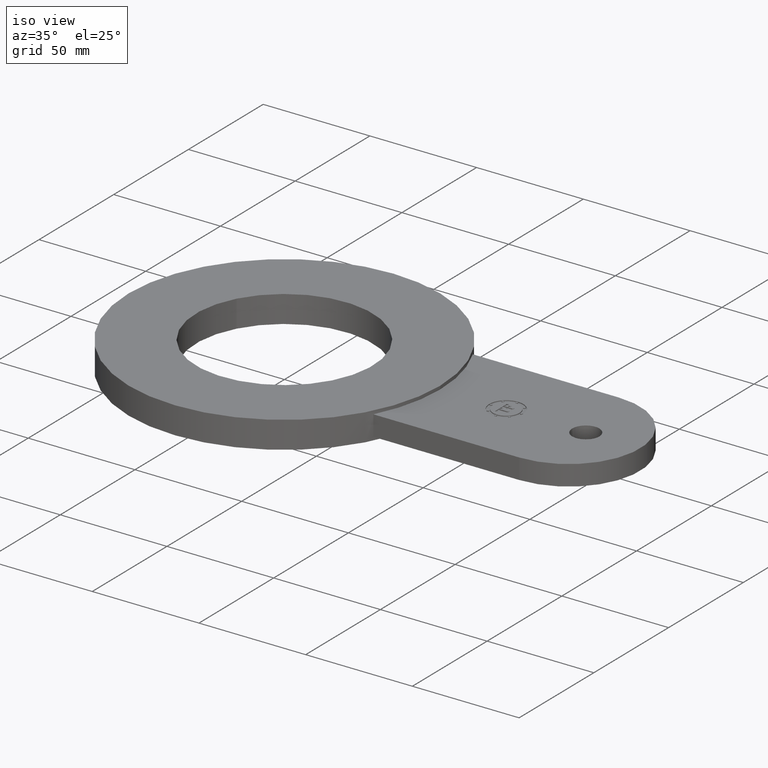
[diagram: clean part render]
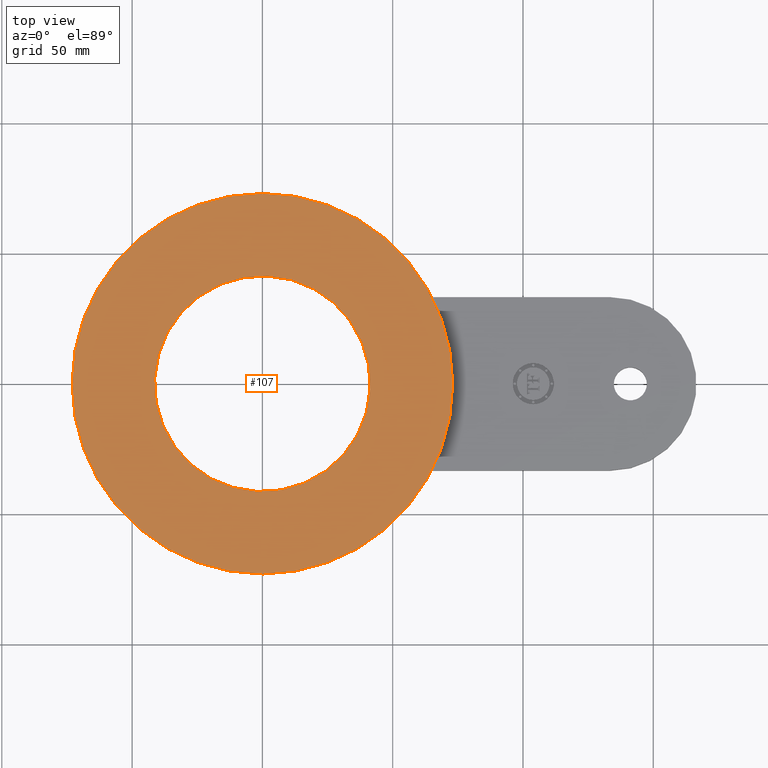
[diagram: tour spotlight — one face highlighted and labeled with its STEP entity id]
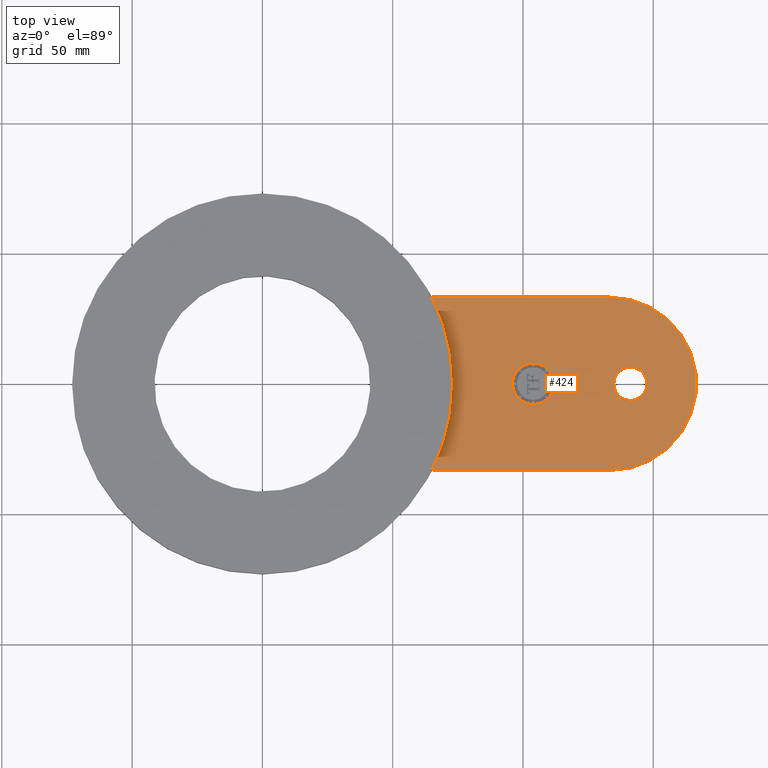
[diagram: tour spotlight — one face highlighted and labeled with its STEP entity id]
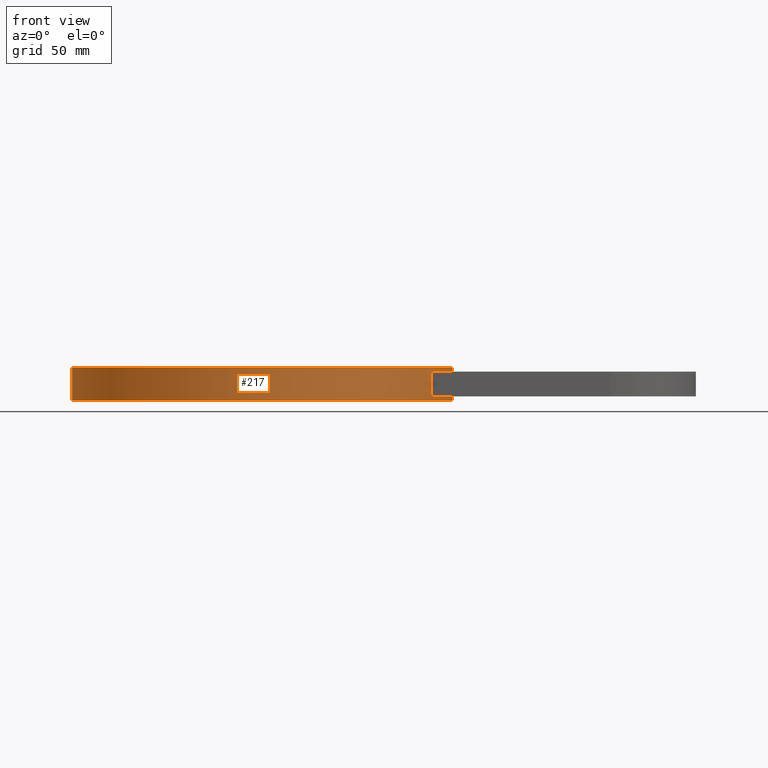
[diagram: tour spotlight — one face highlighted and labeled with its STEP entity id]
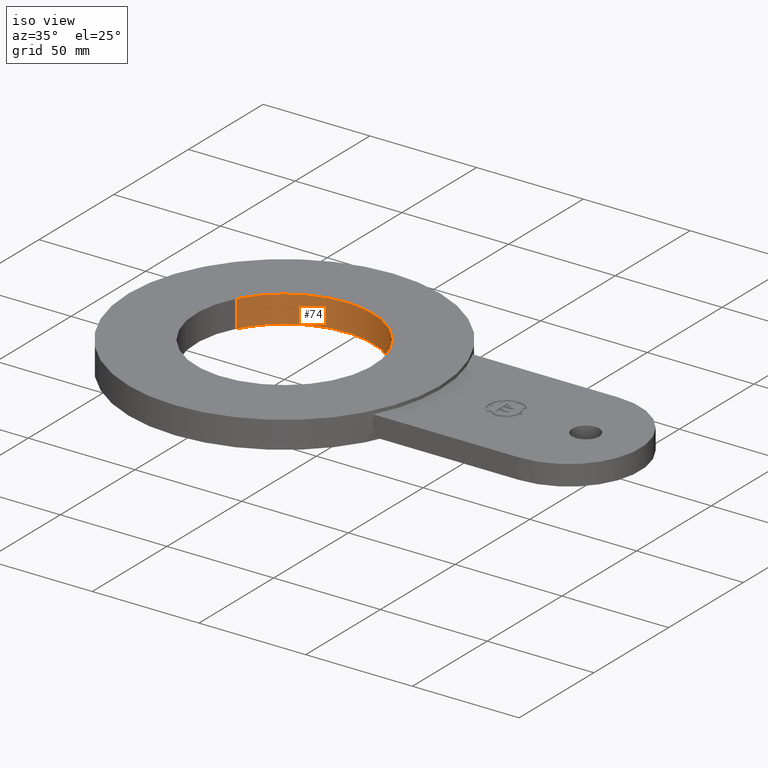
[diagram: tour spotlight — one face highlighted and labeled with its STEP entity id]
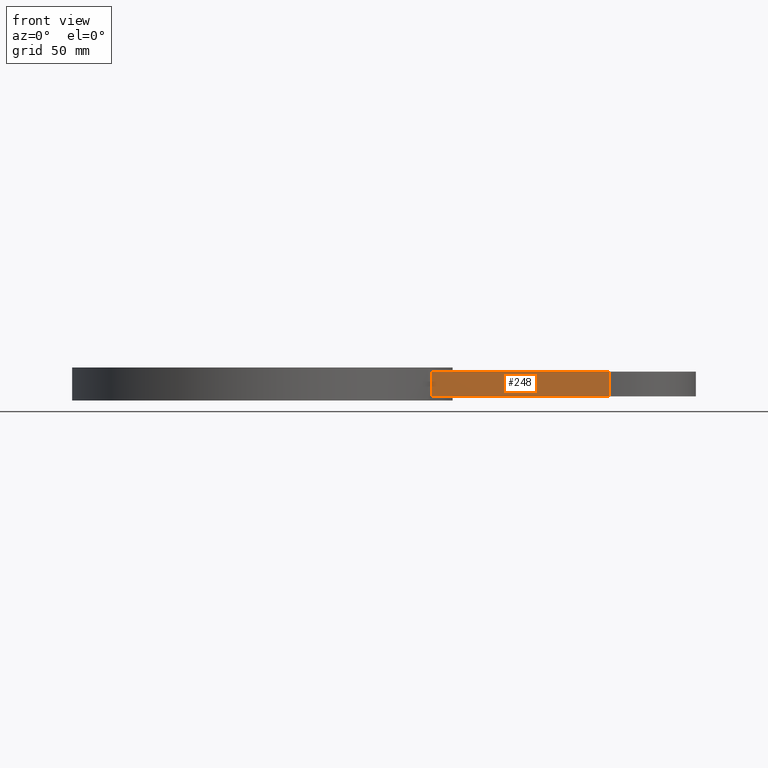
[diagram: tour spotlight — one face highlighted and labeled with its STEP entity id]
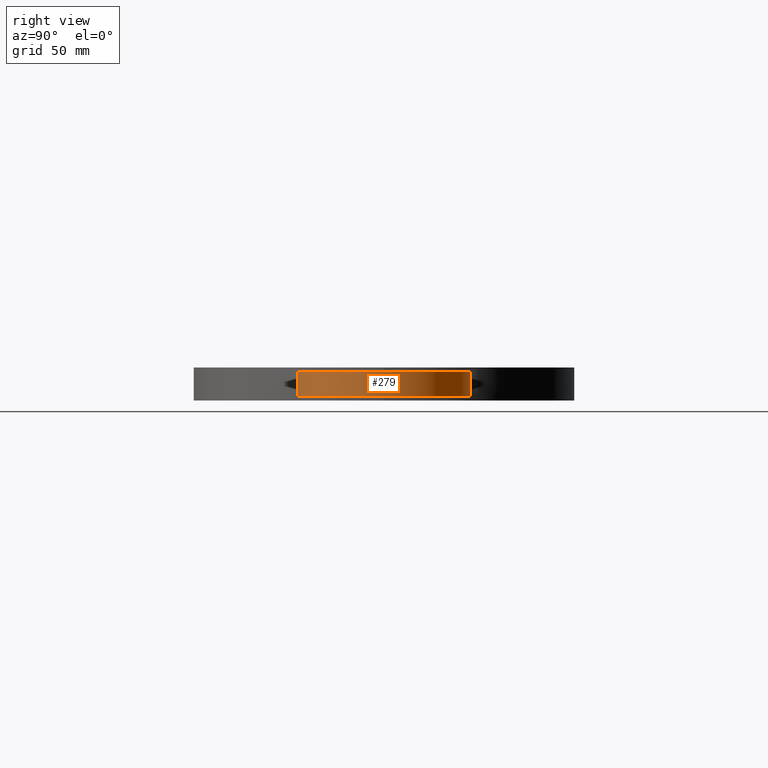
[diagram: tour spotlight — one face highlighted and labeled with its STEP entity id]
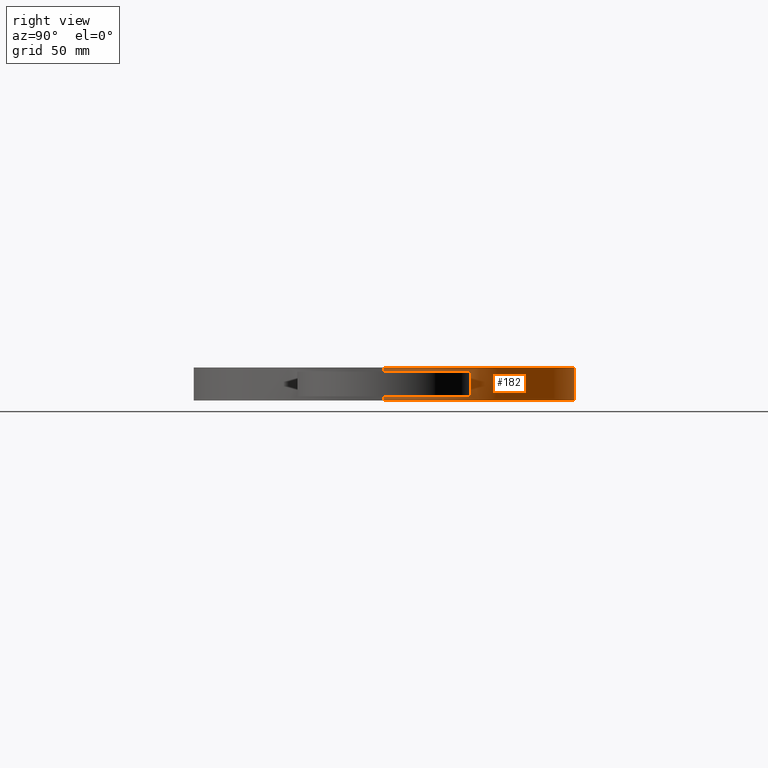
[diagram: tour spotlight — one face highlighted and labeled with its STEP entity id]
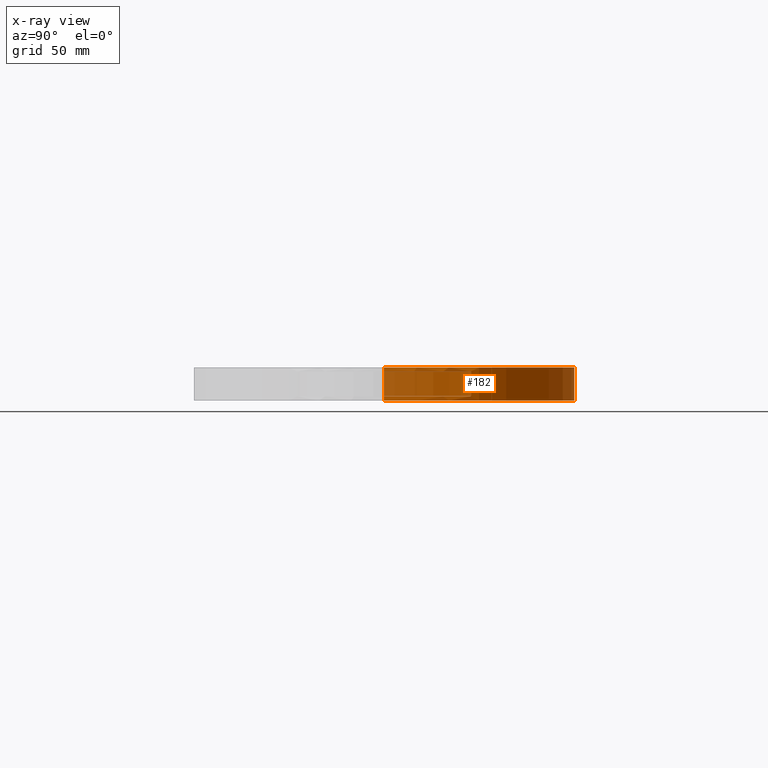
[diagram: x-ray of the same camera — body ghosted, this tour face saturated]
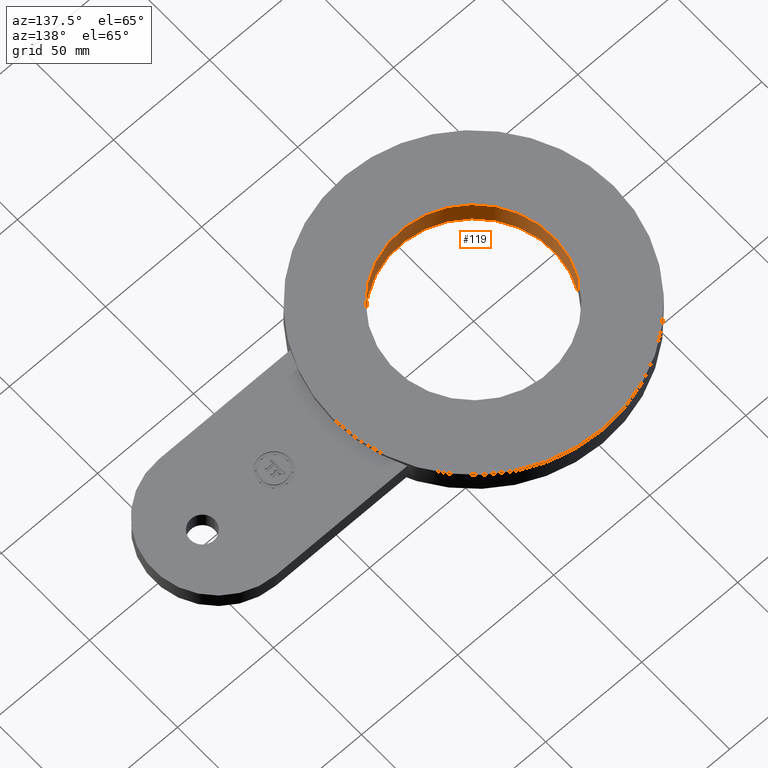
[diagram: tour spotlight — one face highlighted and labeled with its STEP entity id]
A machine part: a face-by-face anatomy tour. The part has 398 B-rep faces; the first image is the clean iso view, then the 8 largest visible faces are spotlighted one at a time (largest first), each with its STEP entity span.

Face 1 — top view, entity #107. In plain terms, the highlighted planar face has unit normal (0, 0, 1).
Definition (entity closure, byte-faithful):
#65=AXIS2_PLACEMENT_3D('Circle Axis2P3D',#63,#64,$) ;
#78=AXIS2_PLACEMENT_3D('Plane Axis2P3D',#75,#76,#77) ;
#82=AXIS2_PLACEMENT_3D('Circle Axis2P3D',#80,#81,$) ;
#91=AXIS2_PLACEMENT_3D('Circle Axis2P3D',#89,#90,$) ;
#100=AXIS2_PLACEMENT_3D('Circle Axis2P3D',#98,#99,$) ;
#46=CARTESIAN_POINT('Vertex',(-1.43045957589,0.781463627928,0.250000000001)) ;
#60=CARTESIAN_POINT('Vertex',(1.43045957589,-0.781463627928,0.250000000001)) ;
#63=CARTESIAN_POINT('Axis2P3D Location',(8.52336574023E-017,-6.99353086378E-017,0.250000000001)) ;
#75=CARTESIAN_POINT('Axis2P3D Location',(0.,0.,0.250000000001)) ;
#80=CARTESIAN_POINT('Axis2P3D Location',(0.,0.,0.250000000001)) ;
#84=CARTESIAN_POINT('Vertex',(2.87500000001,0.,0.250000000001)) ;
#86=CARTESIAN_POINT('Vertex',(-2.87500000001,3.52085954756E-016,0.250000000001)) ;
#89=CARTESIAN_POINT('Axis2P3D Location',(0.,0.,0.250000000001)) ;
#98=CARTESIAN_POINT('Axis2P3D Location',(2.09805925913E-016,-4.19611851827E-016,0.250000000001)) ;
#64=DIRECTION('Axis2P3D Direction',(0.,-0.,-0.0393700787402)) ;
#76=DIRECTION('Axis2P3D Direction',(0.,0.,0.0393700787402)) ;
#77=DIRECTION('Axis2P3D XDirection',(0.0393700787402,0.,0.)) ;
#81=DIRECTION('Axis2P3D Direction',(0.,0.,0.0393700787402)) ;
#90=DIRECTION('Axis2P3D Direction',(0.,0.,0.0393700787402)) ;
#99=DIRECTION('Axis2P3D Direction',(0.,0.,0.0393700787402)) ;
#95=ORIENTED_EDGE('',*,*,#88,.T.) ;
#96=ORIENTED_EDGE('',*,*,#93,.T.) ;
#104=ORIENTED_EDGE('',*,*,#102,.F.) ;
#105=ORIENTED_EDGE('',*,*,#67,.F.) ;
#106=FACE_BOUND('',#103,.T.) ;
#107=ADVANCED_FACE('PartBody',(#97,#106),#79,.T.) ;
#66=CIRCLE('generated circle',#65,1.63000000001) ;
#83=CIRCLE('generated circle',#82,2.87500000001) ;
#92=CIRCLE('generated circle',#91,2.87500000001) ;
#101=CIRCLE('generated circle',#100,1.63000000001) ;
#67=EDGE_CURVE('',#61,#47,#66,.F.) ;
#88=EDGE_CURVE('',#85,#87,#83,.T.) ;
#93=EDGE_CURVE('',#87,#85,#92,.T.) ;
#102=EDGE_CURVE('',#47,#61,#101,.T.) ;
#94=EDGE_LOOP('',(#95,#96)) ;
#103=EDGE_LOOP('',(#104,#105)) ;
#97=FACE_OUTER_BOUND('',#94,.T.) ;
#79=PLANE('',#78) ;
#47=VERTEX_POINT('',#46) ;
#61=VERTEX_POINT('',#60) ;
#85=VERTEX_POINT('',#84) ;
#87=VERTEX_POINT('',#86) ;

Face 2 — top view, entity #424. In plain terms, the highlighted planar face has unit normal (0, 0, 1).
Definition (entity closure, byte-faithful):
#155=AXIS2_PLACEMENT_3D('Circle Axis2P3D',#153,#154,$) ;
#204=AXIS2_PLACEMENT_3D('Circle Axis2P3D',#202,#203,$) ;
#270=AXIS2_PLACEMENT_3D('Circle Axis2P3D',#268,#269,$) ;
#287=AXIS2_PLACEMENT_3D('Circle Axis2P3D',#285,#286,$) ;
#322=AXIS2_PLACEMENT_3D('Circle Axis2P3D',#320,#321,$) ;
#393=AXIS2_PLACEMENT_3D('Plane Axis2P3D',#390,#391,#392) ;
#408=AXIS2_PLACEMENT_3D('Circle Axis2P3D',#406,#407,$) ;
#417=AXIS2_PLACEMENT_3D('Circle Axis2P3D',#415,#416,$) ;
#150=CARTESIAN_POINT('Vertex',(2.87500000001,0.,0.187500000001)) ;
#153=CARTESIAN_POINT('Axis2P3D Location',(0.,0.,0.187500000001)) ;
#157=CARTESIAN_POINT('Vertex',(2.55920397781,1.31000000001,0.187500000001)) ;
#199=CARTESIAN_POINT('Vertex',(2.55920397781,-1.31000000001,0.187500000001)) ;
#202=CARTESIAN_POINT('Axis2P3D Location',(0.,0.,0.187500000001)) ;
#234=CARTESIAN_POINT('Vertex',(5.24920397782,-1.31000000001,0.187500000001)) ;
#237=CARTESIAN_POINT('Line Origine',(3.90420397782,-1.31000000001,0.187500000001)) ;
#265=CARTESIAN_POINT('Vertex',(5.24920397782,1.31000000001,0.187500000001)) ;
#268=CARTESIAN_POINT('Axis2P3D Location',(5.24920397782,0.,0.187500000001)) ;
#285=CARTESIAN_POINT('Axis2P3D Location',(5.55920397782,0.,0.187500000001)) ;
#289=CARTESIAN_POINT('Vertex',(5.80920397783,0.,0.187500000001)) ;
#291=CARTESIAN_POINT('Vertex',(5.30920397782,3.06161699788E-017,0.187500000001)) ;
#320=CARTESIAN_POINT('Axis2P3D Location',(5.55920397782,0.,0.187500000001)) ;
#364=CARTESIAN_POINT('Line Origine',(3.90420397782,1.31000000001,0.187500000001)) ;
#390=CARTESIAN_POINT('Axis2P3D Location',(0.,0.,0.187500000001)) ;
#406=CARTESIAN_POINT('Axis2P3D Location',(4.09210198892,0.,0.187500000001)) ;
#410=CARTESIAN_POINT('Vertex',(4.09210198892,0.312499996876,0.187500000001)) ;
#412=CARTESIAN_POINT('Vertex',(4.09210198892,-0.312499996876,0.187500000001)) ;
#415=CARTESIAN_POINT('Axis2P3D Location',(4.09210198892,0.,0.187500000001)) ;
#154=DIRECTION('Axis2P3D Direction',(0.,0.,0.0393700787402)) ;
#203=DIRECTION('Axis2P3D Direction',(0.,0.,0.0393700787402)) ;
#238=DIRECTION('Vector Direction',(0.0393700787402,0.,0.)) ;
#269=DIRECTION('Axis2P3D Direction',(0.,0.,0.0393700787402)) ;
#286=DIRECTION('Axis2P3D Direction',(0.,0.,0.0393700787402)) ;
#321=DIRECTION('Axis2P3D Direction',(0.,0.,0.0393700787402)) ;
#365=DIRECTION('Vector Direction',(-0.0393700787402,0.,0.)) ;
#391=DIRECTION('Axis2P3D Direction',(0.,0.,0.0393700787402)) ;
#392=DIRECTION('Axis2P3D XDirection',(0.0393700787402,0.,0.)) ;
#407=DIRECTION('Axis2P3D Direction',(0.,0.,0.0393700787402)) ;
#416=DIRECTION('Axis2P3D Direction',(0.,0.,0.0393700787402)) ;
#239=VECTOR('Line Direction',#238,0.0393700787402) ;
#366=VECTOR('Line Direction',#365,0.0393700787402) ;
#396=ORIENTED_EDGE('',*,*,#241,.T.) ;
#397=ORIENTED_EDGE('',*,*,#272,.T.) ;
#398=ORIENTED_EDGE('',*,*,#368,.T.) ;
#399=ORIENTED_EDGE('',*,*,#159,.F.) ;
#400=ORIENTED_EDGE('',*,*,#206,.F.) ;
#403=ORIENTED_EDGE('',*,*,#324,.F.) ;
#404=ORIENTED_EDGE('',*,*,#293,.F.) ;
#421=ORIENTED_EDGE('',*,*,#414,.F.) ;
#422=ORIENTED_EDGE('',*,*,#419,.F.) ;
#405=FACE_BOUND('',#402,.T.) ;
#423=FACE_BOUND('',#420,.T.) ;
#424=ADVANCED_FACE('PartBody',(#401,#405,#423),#394,.T.) ;
#156=CIRCLE('generated circle',#155,2.87500000001) ;
#205=CIRCLE('generated circle',#204,2.87500000001) ;
#271=CIRCLE('generated circle',#270,1.31000000001) ;
#288=CIRCLE('generated circle',#287,0.250000000001) ;
#323=CIRCLE('generated circle',#322,0.250000000001) ;
#409=CIRCLE('generated circle',#408,0.312499996876) ;
#418=CIRCLE('generated circle',#417,0.312499996876) ;
#159=EDGE_CURVE('',#151,#158,#156,.T.) ;
#206=EDGE_CURVE('',#200,#151,#205,.T.) ;
#241=EDGE_CURVE('',#200,#235,#240,.T.) ;
#272=EDGE_CURVE('',#235,#266,#271,.T.) ;
#293=EDGE_CURVE('',#290,#292,#288,.T.) ;
#324=EDGE_CURVE('',#292,#290,#323,.T.) ;
#368=EDGE_CURVE('',#266,#158,#367,.T.) ;
#414=EDGE_CURVE('',#411,#413,#409,.T.) ;
#419=EDGE_CURVE('',#413,#411,#418,.T.) ;
#395=EDGE_LOOP('',(#396,#397,#398,#399,#400)) ;
#402=EDGE_LOOP('',(#403,#404)) ;
#420=EDGE_LOOP('',(#421,#422)) ;
#401=FACE_OUTER_BOUND('',#395,.T.) ;
#240=LINE('Line',#237,#239) ;
#367=LINE('Line',#364,#366) ;
#394=PLANE('',#393) ;
#151=VERTEX_POINT('',#150) ;
#158=VERTEX_POINT('',#157) ;
#200=VERTEX_POINT('',#199) ;
#235=VERTEX_POINT('',#234) ;
#266=VERTEX_POINT('',#265) ;
#290=VERTEX_POINT('',#289) ;
#292=VERTEX_POINT('',#291) ;
#411=VERTEX_POINT('',#410) ;
#413=VERTEX_POINT('',#412) ;

Face 3 — front view, entity #217. In plain terms, the highlighted cylindrical surface (partial cylindrical patch) has radius 73.025 mm, axis along (0, 0, 1).
Definition (entity closure, byte-faithful):
#91=AXIS2_PLACEMENT_3D('Circle Axis2P3D',#89,#90,$) ;
#123=AXIS2_PLACEMENT_3D('Cylinder Axis2P3D',#120,#121,#122) ;
#185=AXIS2_PLACEMENT_3D('Circle Axis2P3D',#183,#184,$) ;
#190=AXIS2_PLACEMENT_3D('Circle Axis2P3D',#188,#189,$) ;
#204=AXIS2_PLACEMENT_3D('Circle Axis2P3D',#202,#203,$) ;
#84=CARTESIAN_POINT('Vertex',(2.87500000001,0.,0.250000000001)) ;
#86=CARTESIAN_POINT('Vertex',(-2.87500000001,3.52085954756E-016,0.250000000001)) ;
#89=CARTESIAN_POINT('Axis2P3D Location',(0.,0.,0.250000000001)) ;
#120=CARTESIAN_POINT('Axis2P3D Location',(0.,0.,0.)) ;
#125=CARTESIAN_POINT('Line Origine',(2.87500000001,0.,0.)) ;
#129=CARTESIAN_POINT('Vertex',(2.87500000001,0.,-0.250000000001)) ;
#131=CARTESIAN_POINT('Vertex',(2.87500000001,0.,-0.187500000001)) ;
#138=CARTESIAN_POINT('Vertex',(-2.87500000001,3.52085954756E-016,-0.250000000001)) ;
#141=CARTESIAN_POINT('Line Origine',(-2.87500000001,3.52085954756E-016,0.)) ;
#146=CARTESIAN_POINT('Line Origine',(2.87500000001,0.,0.)) ;
#150=CARTESIAN_POINT('Vertex',(2.87500000001,0.,0.187500000001)) ;
#183=CARTESIAN_POINT('Axis2P3D Location',(0.,0.,-0.250000000001)) ;
#188=CARTESIAN_POINT('Axis2P3D Location',(0.,0.,-0.187500000001)) ;
#192=CARTESIAN_POINT('Vertex',(2.55920397781,-1.31000000001,-0.187500000001)) ;
#195=CARTESIAN_POINT('Line Origine',(2.55920397781,-1.31000000001,0.)) ;
#199=CARTESIAN_POINT('Vertex',(2.55920397781,-1.31000000001,0.187500000001)) ;
#202=CARTESIAN_POINT('Axis2P3D Location',(0.,0.,0.187500000001)) ;
#90=DIRECTION('Axis2P3D Direction',(0.,0.,0.0393700787402)) ;
#121=DIRECTION('Axis2P3D Direction',(0.,0.,0.0393700787402)) ;
#122=DIRECTION('Axis2P3D XDirection',(-0.0393700787402,4.82144409113E-018,0.)) ;
#126=DIRECTION('Vector Direction',(0.,0.,0.0393700787402)) ;
#142=DIRECTION('Vector Direction',(0.,0.,0.0393700787402)) ;
#147=DIRECTION('Vector Direction',(0.,0.,0.0393700787402)) ;
#184=DIRECTION('Axis2P3D Direction',(0.,0.,0.0393700787402)) ;
#189=DIRECTION('Axis2P3D Direction',(0.,0.,0.0393700787402)) ;
#196=DIRECTION('Vector Direction',(0.,0.,0.0393700787402)) ;
#203=DIRECTION('Axis2P3D Direction',(0.,0.,0.0393700787402)) ;
#127=VECTOR('Line Direction',#126,0.0393700787402) ;
#143=VECTOR('Line Direction',#142,0.0393700787402) ;
#148=VECTOR('Line Direction',#147,0.0393700787402) ;
#197=VECTOR('Line Direction',#196,0.0393700787402) ;
#208=ORIENTED_EDGE('',*,*,#152,.T.) ;
#209=ORIENTED_EDGE('',*,*,#93,.F.) ;
#210=ORIENTED_EDGE('',*,*,#145,.F.) ;
#211=ORIENTED_EDGE('',*,*,#187,.T.) ;
#212=ORIENTED_EDGE('',*,*,#133,.T.) ;
#213=ORIENTED_EDGE('',*,*,#194,.F.) ;
#214=ORIENTED_EDGE('',*,*,#201,.T.) ;
#215=ORIENTED_EDGE('',*,*,#206,.T.) ;
#217=ADVANCED_FACE('PartBody',(#216),#124,.T.) ;
#92=CIRCLE('generated circle',#91,2.87500000001) ;
#186=CIRCLE('generated circle',#185,2.87500000001) ;
#191=CIRCLE('generated circle',#190,2.87500000001) ;
#205=CIRCLE('generated circle',#204,2.87500000001) ;
#124=CYLINDRICAL_SURFACE('generated cylinder',#123,2.87500000001) ;
#93=EDGE_CURVE('',#87,#85,#92,.T.) ;
#133=EDGE_CURVE('',#130,#132,#128,.T.) ;
#145=EDGE_CURVE('',#139,#87,#144,.T.) ;
#152=EDGE_CURVE('',#151,#85,#149,.T.) ;
#187=EDGE_CURVE('',#139,#130,#186,.T.) ;
#194=EDGE_CURVE('',#193,#132,#191,.T.) ;
#201=EDGE_CURVE('',#193,#200,#198,.T.) ;
#206=EDGE_CURVE('',#200,#151,#205,.T.) ;
#207=EDGE_LOOP('',(#208,#209,#210,#211,#212,#213,#214,#215)) ;
#216=FACE_OUTER_BOUND('',#207,.T.) ;
#128=LINE('Line',#125,#127) ;
#144=LINE('Line',#141,#143) ;
#149=LINE('Line',#146,#148) ;
#198=LINE('Line',#195,#197) ;
#85=VERTEX_POINT('',#84) ;
#87=VERTEX_POINT('',#86) ;
#130=VERTEX_POINT('',#129) ;
#132=VERTEX_POINT('',#131) ;
#139=VERTEX_POINT('',#138) ;
#151=VERTEX_POINT('',#150) ;
#193=VERTEX_POINT('',#192) ;
#200=VERTEX_POINT('',#199) ;

Face 4 — iso view, entity #74. In plain terms, the highlighted cylindrical surface (partial cylindrical patch) has radius 41.402 mm, axis along (0, -0, -1).
Definition (entity closure, byte-faithful):
#38=AXIS2_PLACEMENT_3D('Cylinder Axis2P3D',#35,#36,#37) ;
#51=AXIS2_PLACEMENT_3D('Circle Axis2P3D',#49,#50,$) ;
#65=AXIS2_PLACEMENT_3D('Circle Axis2P3D',#63,#64,$) ;
#35=CARTESIAN_POINT('Axis2P3D Location',(8.52336574023E-017,-6.99353086378E-017,0.246062992127)) ;
#40=CARTESIAN_POINT('Line Origine',(-1.43045957589,0.781463627928,0.)) ;
#44=CARTESIAN_POINT('Vertex',(-1.43045957589,0.781463627928,-0.250000000001)) ;
#46=CARTESIAN_POINT('Vertex',(-1.43045957589,0.781463627928,0.250000000001)) ;
#49=CARTESIAN_POINT('Axis2P3D Location',(8.52336574023E-017,-6.99353086378E-017,-0.250000000001)) ;
#53=CARTESIAN_POINT('Vertex',(1.43045957589,-0.781463627928,-0.250000000001)) ;
#56=CARTESIAN_POINT('Line Origine',(1.43045957589,-0.781463627928,0.)) ;
#60=CARTESIAN_POINT('Vertex',(1.43045957589,-0.781463627928,0.250000000001)) ;
#63=CARTESIAN_POINT('Axis2P3D Location',(8.52336574023E-017,-6.99353086378E-017,0.250000000001)) ;
#36=DIRECTION('Axis2P3D Direction',(0.,-0.,-0.0393700787402)) ;
#37=DIRECTION('Axis2P3D XDirection',(0.0345504945626,-0.0188750212049,0.)) ;
#41=DIRECTION('Vector Direction',(0.,0.,-0.0393700787402)) ;
#50=DIRECTION('Axis2P3D Direction',(0.,-0.,-0.0393700787402)) ;
#57=DIRECTION('Vector Direction',(0.,0.,-0.0393700787402)) ;
#64=DIRECTION('Axis2P3D Direction',(0.,-0.,-0.0393700787402)) ;
#42=VECTOR('Line Direction',#41,0.0393700787402) ;
#58=VECTOR('Line Direction',#57,0.0393700787402) ;
#69=ORIENTED_EDGE('',*,*,#48,.F.) ;
#70=ORIENTED_EDGE('',*,*,#55,.F.) ;
#71=ORIENTED_EDGE('',*,*,#62,.T.) ;
#72=ORIENTED_EDGE('',*,*,#67,.T.) ;
#74=ADVANCED_FACE('PartBody',(#73),#39,.F.) ;
#52=CIRCLE('generated circle',#51,1.63000000001) ;
#66=CIRCLE('generated circle',#65,1.63000000001) ;
#39=CYLINDRICAL_SURFACE('generated cylinder',#38,1.63000000001) ;
#48=EDGE_CURVE('',#45,#47,#43,.F.) ;
#55=EDGE_CURVE('',#54,#45,#52,.F.) ;
#62=EDGE_CURVE('',#54,#61,#59,.F.) ;
#67=EDGE_CURVE('',#61,#47,#66,.F.) ;
#68=EDGE_LOOP('',(#69,#70,#71,#72)) ;
#73=FACE_OUTER_BOUND('',#68,.T.) ;
#43=LINE('Line',#40,#42) ;
#59=LINE('Line',#56,#58) ;
#45=VERTEX_POINT('',#44) ;
#47=VERTEX_POINT('',#46) ;
#54=VERTEX_POINT('',#53) ;
#61=VERTEX_POINT('',#60) ;

Face 5 — front view, entity #248. In plain terms, the highlighted planar face has unit normal (0, -1, 0).
Definition (entity closure, byte-faithful):
#221=AXIS2_PLACEMENT_3D('Plane Axis2P3D',#218,#219,#220) ;
#192=CARTESIAN_POINT('Vertex',(2.55920397781,-1.31000000001,-0.187500000001)) ;
#195=CARTESIAN_POINT('Line Origine',(2.55920397781,-1.31000000001,0.)) ;
#199=CARTESIAN_POINT('Vertex',(2.55920397781,-1.31000000001,0.187500000001)) ;
#218=CARTESIAN_POINT('Axis2P3D Location',(2.55920397781,-1.31000000001,0.)) ;
#223=CARTESIAN_POINT('Line Origine',(3.90420397782,-1.31000000001,-0.187500000001)) ;
#227=CARTESIAN_POINT('Vertex',(5.24920397782,-1.31000000001,-0.187500000001)) ;
#230=CARTESIAN_POINT('Line Origine',(5.24920397782,-1.31000000001,0.)) ;
#234=CARTESIAN_POINT('Vertex',(5.24920397782,-1.31000000001,0.187500000001)) ;
#237=CARTESIAN_POINT('Line Origine',(3.90420397782,-1.31000000001,0.187500000001)) ;
#196=DIRECTION('Vector Direction',(0.,0.,0.0393700787402)) ;
#219=DIRECTION('Axis2P3D Direction',(0.,-0.0393700787402,0.)) ;
#220=DIRECTION('Axis2P3D XDirection',(0.0393700787402,0.,0.)) ;
#224=DIRECTION('Vector Direction',(0.0393700787402,0.,0.)) ;
#231=DIRECTION('Vector Direction',(0.,0.,0.0393700787402)) ;
#238=DIRECTION('Vector Direction',(0.0393700787402,0.,0.)) ;
#197=VECTOR('Line Direction',#196,0.0393700787402) ;
#225=VECTOR('Line Direction',#224,0.0393700787402) ;
#232=VECTOR('Line Direction',#231,0.0393700787402) ;
#239=VECTOR('Line Direction',#238,0.0393700787402) ;
#243=ORIENTED_EDGE('',*,*,#201,.F.) ;
#244=ORIENTED_EDGE('',*,*,#229,.T.) ;
#245=ORIENTED_EDGE('',*,*,#236,.T.) ;
#246=ORIENTED_EDGE('',*,*,#241,.F.) ;
#248=ADVANCED_FACE('PartBody',(#247),#222,.T.) ;
#201=EDGE_CURVE('',#193,#200,#198,.T.) ;
#229=EDGE_CURVE('',#193,#228,#226,.T.) ;
#236=EDGE_CURVE('',#228,#235,#233,.T.) ;
#241=EDGE_CURVE('',#200,#235,#240,.T.) ;
#242=EDGE_LOOP('',(#243,#244,#245,#246)) ;
#247=FACE_OUTER_BOUND('',#242,.T.) ;
#198=LINE('Line',#195,#197) ;
#226=LINE('Line',#223,#225) ;
#233=LINE('Line',#230,#232) ;
#240=LINE('Line',#237,#239) ;
#222=PLANE('',#221) ;
#193=VERTEX_POINT('',#192) ;
#200=VERTEX_POINT('',#199) ;
#228=VERTEX_POINT('',#227) ;
#235=VERTEX_POINT('',#234) ;

Face 6 — right view, entity #279. In plain terms, the highlighted cylindrical surface (partial cylindrical patch) has radius 33.274 mm, axis along (0, 0, 1).
Definition (entity closure, byte-faithful):
#252=AXIS2_PLACEMENT_3D('Cylinder Axis2P3D',#249,#250,#251) ;
#256=AXIS2_PLACEMENT_3D('Circle Axis2P3D',#254,#255,$) ;
#270=AXIS2_PLACEMENT_3D('Circle Axis2P3D',#268,#269,$) ;
#227=CARTESIAN_POINT('Vertex',(5.24920397782,-1.31000000001,-0.187500000001)) ;
#230=CARTESIAN_POINT('Line Origine',(5.24920397782,-1.31000000001,0.)) ;
#234=CARTESIAN_POINT('Vertex',(5.24920397782,-1.31000000001,0.187500000001)) ;
#249=CARTESIAN_POINT('Axis2P3D Location',(5.24920397782,0.,0.)) ;
#254=CARTESIAN_POINT('Axis2P3D Location',(5.24920397782,0.,-0.187500000001)) ;
#258=CARTESIAN_POINT('Vertex',(5.24920397782,1.31000000001,-0.187500000001)) ;
#261=CARTESIAN_POINT('Line Origine',(5.24920397782,1.31000000001,0.)) ;
#265=CARTESIAN_POINT('Vertex',(5.24920397782,1.31000000001,0.187500000001)) ;
#268=CARTESIAN_POINT('Axis2P3D Location',(5.24920397782,0.,0.187500000001)) ;
#231=DIRECTION('Vector Direction',(0.,0.,0.0393700787402)) ;
#250=DIRECTION('Axis2P3D Direction',(0.,0.,0.0393700787402)) ;
#251=DIRECTION('Axis2P3D XDirection',(-7.2321661367E-018,-0.0393700787402,-0.)) ;
#255=DIRECTION('Axis2P3D Direction',(0.,0.,0.0393700787402)) ;
#262=DIRECTION('Vector Direction',(0.,0.,0.0393700787402)) ;
#269=DIRECTION('Axis2P3D Direction',(0.,0.,0.0393700787402)) ;
#232=VECTOR('Line Direction',#231,0.0393700787402) ;
#263=VECTOR('Line Direction',#262,0.0393700787402) ;
#274=ORIENTED_EDGE('',*,*,#236,.F.) ;
#275=ORIENTED_EDGE('',*,*,#260,.T.) ;
#276=ORIENTED_EDGE('',*,*,#267,.T.) ;
#277=ORIENTED_EDGE('',*,*,#272,.F.) ;
#279=ADVANCED_FACE('PartBody',(#278),#253,.T.) ;
#257=CIRCLE('generated circle',#256,1.31000000001) ;
#271=CIRCLE('generated circle',#270,1.31000000001) ;
#253=CYLINDRICAL_SURFACE('generated cylinder',#252,1.31000000001) ;
#236=EDGE_CURVE('',#228,#235,#233,.T.) ;
#260=EDGE_CURVE('',#228,#259,#257,.T.) ;
#267=EDGE_CURVE('',#259,#266,#264,.T.) ;
#272=EDGE_CURVE('',#235,#266,#271,.T.) ;
#273=EDGE_LOOP('',(#274,#275,#276,#277)) ;
#278=FACE_OUTER_BOUND('',#273,.T.) ;
#233=LINE('Line',#230,#232) ;
#264=LINE('Line',#261,#263) ;
#228=VERTEX_POINT('',#227) ;
#235=VERTEX_POINT('',#234) ;
#259=VERTEX_POINT('',#258) ;
#266=VERTEX_POINT('',#265) ;

Face 7 — right view, entity #182. An x-ray twin of the same camera follows (body ghosted, this face saturated) — the face is partly hidden behind the body. In plain terms, the highlighted cylindrical surface (partial cylindrical patch) has radius 73.025 mm, axis along (0, 0, 1).
Definition (entity closure, byte-faithful):
#82=AXIS2_PLACEMENT_3D('Circle Axis2P3D',#80,#81,$) ;
#123=AXIS2_PLACEMENT_3D('Cylinder Axis2P3D',#120,#121,#122) ;
#136=AXIS2_PLACEMENT_3D('Circle Axis2P3D',#134,#135,$) ;
#155=AXIS2_PLACEMENT_3D('Circle Axis2P3D',#153,#154,$) ;
#169=AXIS2_PLACEMENT_3D('Circle Axis2P3D',#167,#168,$) ;
#80=CARTESIAN_POINT('Axis2P3D Location',(0.,0.,0.250000000001)) ;
#84=CARTESIAN_POINT('Vertex',(2.87500000001,0.,0.250000000001)) ;
#86=CARTESIAN_POINT('Vertex',(-2.87500000001,3.52085954756E-016,0.250000000001)) ;
#120=CARTESIAN_POINT('Axis2P3D Location',(0.,0.,0.)) ;
#125=CARTESIAN_POINT('Line Origine',(2.87500000001,0.,0.)) ;
#129=CARTESIAN_POINT('Vertex',(2.87500000001,0.,-0.250000000001)) ;
#131=CARTESIAN_POINT('Vertex',(2.87500000001,0.,-0.187500000001)) ;
#134=CARTESIAN_POINT('Axis2P3D Location',(0.,0.,-0.250000000001)) ;
#138=CARTESIAN_POINT('Vertex',(-2.87500000001,3.52085954756E-016,-0.250000000001)) ;
#141=CARTESIAN_POINT('Line Origine',(-2.87500000001,3.52085954756E-016,0.)) ;
#146=CARTESIAN_POINT('Line Origine',(2.87500000001,0.,0.)) ;
#150=CARTESIAN_POINT('Vertex',(2.87500000001,0.,0.187500000001)) ;
#153=CARTESIAN_POINT('Axis2P3D Location',(0.,0.,0.187500000001)) ;
#157=CARTESIAN_POINT('Vertex',(2.55920397781,1.31000000001,0.187500000001)) ;
#160=CARTESIAN_POINT('Line Origine',(2.55920397781,1.31000000001,0.)) ;
#164=CARTESIAN_POINT('Vertex',(2.55920397781,1.31000000001,-0.187500000001)) ;
#167=CARTESIAN_POINT('Axis2P3D Location',(0.,0.,-0.187500000001)) ;
#81=DIRECTION('Axis2P3D Direction',(0.,0.,0.0393700787402)) ;
#121=DIRECTION('Axis2P3D Direction',(0.,0.,0.0393700787402)) ;
#122=DIRECTION('Axis2P3D XDirection',(-0.0393700787402,4.82144409113E-018,0.)) ;
#126=DIRECTION('Vector Direction',(0.,0.,0.0393700787402)) ;
#135=DIRECTION('Axis2P3D Direction',(0.,0.,0.0393700787402)) ;
#142=DIRECTION('Vector Direction',(0.,0.,0.0393700787402)) ;
#147=DIRECTION('Vector Direction',(0.,0.,0.0393700787402)) ;
#154=DIRECTION('Axis2P3D Direction',(0.,0.,0.0393700787402)) ;
#161=DIRECTION('Vector Direction',(0.,0.,0.0393700787402)) ;
#168=DIRECTION('Axis2P3D Direction',(0.,0.,0.0393700787402)) ;
#127=VECTOR('Line Direction',#126,0.0393700787402) ;
#143=VECTOR('Line Direction',#142,0.0393700787402) ;
#148=VECTOR('Line Direction',#147,0.0393700787402) ;
#162=VECTOR('Line Direction',#161,0.0393700787402) ;
#173=ORIENTED_EDGE('',*,*,#133,.F.) ;
#174=ORIENTED_EDGE('',*,*,#140,.T.) ;
#175=ORIENTED_EDGE('',*,*,#145,.T.) ;
#176=ORIENTED_EDGE('',*,*,#88,.F.) ;
#177=ORIENTED_EDGE('',*,*,#152,.F.) ;
#178=ORIENTED_EDGE('',*,*,#159,.T.) ;
#179=ORIENTED_EDGE('',*,*,#166,.F.) ;
#180=ORIENTED_EDGE('',*,*,#171,.F.) ;
#182=ADVANCED_FACE('PartBody',(#181),#124,.T.) ;
#83=CIRCLE('generated circle',#82,2.87500000001) ;
#137=CIRCLE('generated circle',#136,2.87500000001) ;
#156=CIRCLE('generated circle',#155,2.87500000001) ;
#170=CIRCLE('generated circle',#169,2.87500000001) ;
#124=CYLINDRICAL_SURFACE('generated cylinder',#123,2.87500000001) ;
#88=EDGE_CURVE('',#85,#87,#83,.T.) ;
#133=EDGE_CURVE('',#130,#132,#128,.T.) ;
#140=EDGE_CURVE('',#130,#139,#137,.T.) ;
#145=EDGE_CURVE('',#139,#87,#144,.T.) ;
#152=EDGE_CURVE('',#151,#85,#149,.T.) ;
#159=EDGE_CURVE('',#151,#158,#156,.T.) ;
#166=EDGE_CURVE('',#165,#158,#163,.T.) ;
#171=EDGE_CURVE('',#132,#165,#170,.T.) ;
#172=EDGE_LOOP('',(#173,#174,#175,#176,#177,#178,#179,#180)) ;
#181=FACE_OUTER_BOUND('',#172,.T.) ;
#128=LINE('Line',#125,#127) ;
#144=LINE('Line',#141,#143) ;
#149=LINE('Line',#146,#148) ;
#163=LINE('Line',#160,#162) ;
#85=VERTEX_POINT('',#84) ;
#87=VERTEX_POINT('',#86) ;
#130=VERTEX_POINT('',#129) ;
#132=VERTEX_POINT('',#131) ;
#139=VERTEX_POINT('',#138) ;
#151=VERTEX_POINT('',#150) ;
#158=VERTEX_POINT('',#157) ;
#165=VERTEX_POINT('',#164) ;

Face 8 — auxiliary view, entity #119. In plain terms, the highlighted cylindrical surface (partial cylindrical patch) has radius 41.402 mm, axis along (0, -0, -1).
Definition (entity closure, byte-faithful):
#38=AXIS2_PLACEMENT_3D('Cylinder Axis2P3D',#35,#36,#37) ;
#100=AXIS2_PLACEMENT_3D('Circle Axis2P3D',#98,#99,$) ;
#110=AXIS2_PLACEMENT_3D('Circle Axis2P3D',#108,#109,$) ;
#35=CARTESIAN_POINT('Axis2P3D Location',(8.52336574023E-017,-6.99353086378E-017,0.246062992127)) ;
#40=CARTESIAN_POINT('Line Origine',(-1.43045957589,0.781463627928,0.)) ;
#44=CARTESIAN_POINT('Vertex',(-1.43045957589,0.781463627928,-0.250000000001)) ;
#46=CARTESIAN_POINT('Vertex',(-1.43045957589,0.781463627928,0.250000000001)) ;
#53=CARTESIAN_POINT('Vertex',(1.43045957589,-0.781463627928,-0.250000000001)) ;
#56=CARTESIAN_POINT('Line Origine',(1.43045957589,-0.781463627928,0.)) ;
#60=CARTESIAN_POINT('Vertex',(1.43045957589,-0.781463627928,0.250000000001)) ;
#98=CARTESIAN_POINT('Axis2P3D Location',(2.09805925913E-016,-4.19611851827E-016,0.250000000001)) ;
#108=CARTESIAN_POINT('Axis2P3D Location',(8.52336574023E-017,-6.99353086378E-017,-0.250000000001)) ;
#36=DIRECTION('Axis2P3D Direction',(0.,-0.,-0.0393700787402)) ;
#37=DIRECTION('Axis2P3D XDirection',(0.0345504945626,-0.0188750212049,0.)) ;
#41=DIRECTION('Vector Direction',(0.,0.,-0.0393700787402)) ;
#57=DIRECTION('Vector Direction',(0.,0.,-0.0393700787402)) ;
#99=DIRECTION('Axis2P3D Direction',(0.,0.,0.0393700787402)) ;
#109=DIRECTION('Axis2P3D Direction',(0.,-0.,-0.0393700787402)) ;
#42=VECTOR('Line Direction',#41,0.0393700787402) ;
#58=VECTOR('Line Direction',#57,0.0393700787402) ;
#114=ORIENTED_EDGE('',*,*,#62,.F.) ;
#115=ORIENTED_EDGE('',*,*,#112,.F.) ;
#116=ORIENTED_EDGE('',*,*,#48,.T.) ;
#117=ORIENTED_EDGE('',*,*,#102,.T.) ;
#119=ADVANCED_FACE('PartBody',(#118),#39,.F.) ;
#101=CIRCLE('generated circle',#100,1.63000000001) ;
#111=CIRCLE('generated circle',#110,1.63000000001) ;
#39=CYLINDRICAL_SURFACE('generated cylinder',#38,1.63000000001) ;
#48=EDGE_CURVE('',#45,#47,#43,.F.) ;
#62=EDGE_CURVE('',#54,#61,#59,.F.) ;
#102=EDGE_CURVE('',#47,#61,#101,.T.) ;
#112=EDGE_CURVE('',#45,#54,#111,.F.) ;
#113=EDGE_LOOP('',(#114,#115,#116,#117)) ;
#118=FACE_OUTER_BOUND('',#113,.T.) ;
#43=LINE('Line',#40,#42) ;
#59=LINE('Line',#56,#58) ;
#45=VERTEX_POINT('',#44) ;
#47=VERTEX_POINT('',#46) ;
#54=VERTEX_POINT('',#53) ;
#61=VERTEX_POINT('',#60) ;